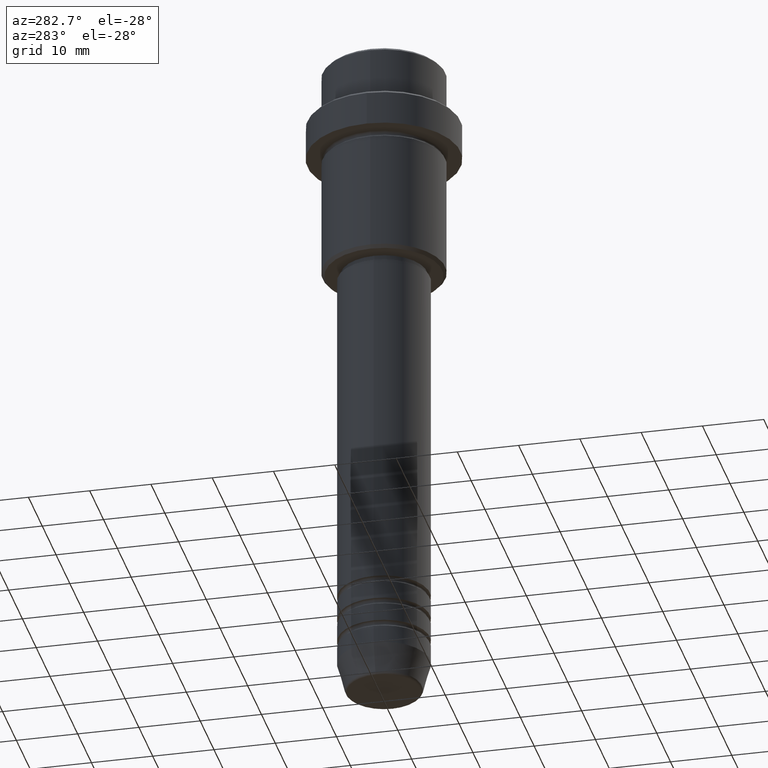
[diagram: clean part render]
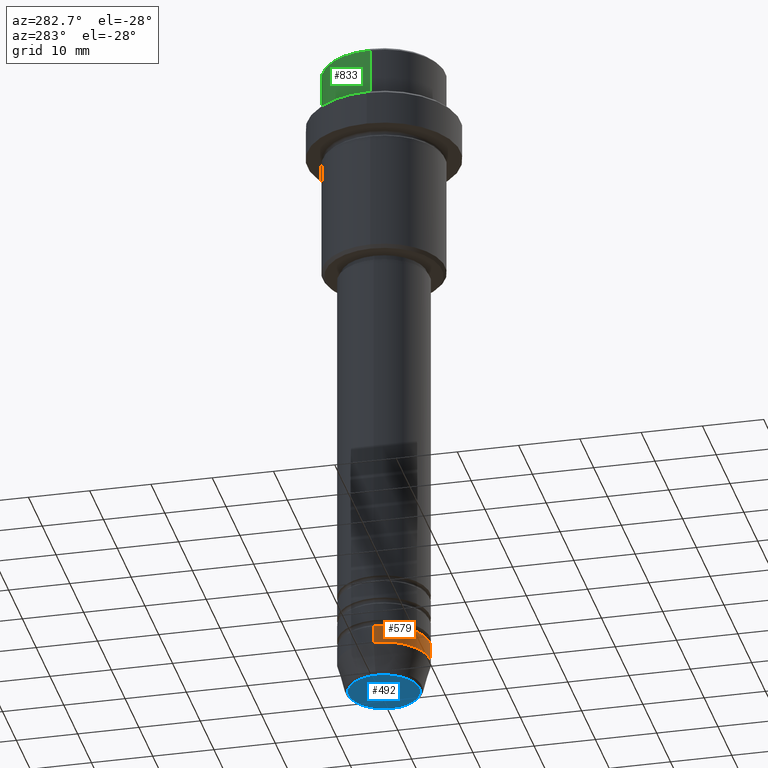
[diagram: same view with three faces highlighted in distinct colors, each labeled with its STEP entity id]
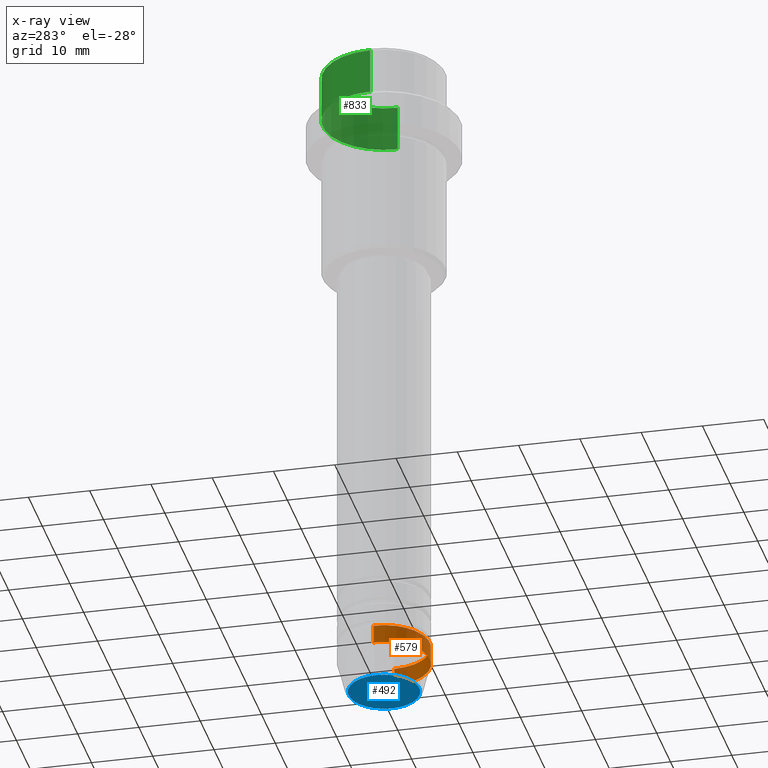
[diagram: x-ray of the same camera — body ghosted, the three highlighted faces saturated]
A machine part, auxiliary view with three faces highlighted in distinct colors.
The next image is the same camera in x-ray (body ghosted, the three faces saturated) — at least one of them is partly hidden behind the body in this view.
Their STEP definitions:

[orange] entity #579 — the highlighted cylindrical surface (partial cylindrical patch) has radius 7.5 mm, axis along (-0, -0, 1).
#188 = CARTESIAN_POINT ( 'NONE',  ( 7.500000000000000000, 0.000000000000000000, -106.0000000000000000 ) ) ;
#190 = DIRECTION ( 'NONE',  ( 1.000000000000000000, 0.000000000000000000, 0.000000000000000000 ) ) ;
#204 = EDGE_CURVE ( 'NONE', #563, #276, #934, .T. ) ;
#247 = VECTOR ( 'NONE', #1048, 1000.000000000000000 ) ;
#261 = ORIENTED_EDGE ( 'NONE', *, *, #1046, .F. ) ;
#276 = VERTEX_POINT ( 'NONE', #741 ) ;
#296 = DIRECTION ( 'NONE',  ( 1.000000000000000000, 0.000000000000000000, 0.000000000000000000 ) ) ;
#310 = AXIS2_PLACEMENT_3D ( 'NONE', #1409, #412, #190 ) ;
#341 = ORIENTED_EDGE ( 'NONE', *, *, #537, .T. ) ;
#372 = DIRECTION ( 'NONE',  ( -0.000000000000000000, -0.000000000000000000, 1.000000000000000000 ) ) ;
#385 = CARTESIAN_POINT ( 'NONE',  ( 7.500000000000000000, 0.000000000000000000, 0.000000000000000000 ) ) ;
#412 = DIRECTION ( 'NONE',  ( -0.000000000000000000, -0.000000000000000000, 1.000000000000000000 ) ) ;
#449 = AXIS2_PLACEMENT_3D ( 'NONE', #925, #372, #1266 ) ;
#537 = EDGE_CURVE ( 'NONE', #928, #995, #749, .T. ) ;
#563 = VERTEX_POINT ( 'NONE', #582 ) ;
#579 = ADVANCED_FACE ( 'NONE', ( #1404 ), #1069, .T. ) ;
#582 = CARTESIAN_POINT ( 'NONE',  ( -7.500000000000000000, 9.184850993605147944E-16, -103.0000000000000000 ) ) ;
#596 = CARTESIAN_POINT ( 'NONE',  ( -7.500000000000000000, 9.184850993605147944E-16, -106.0000000000000000 ) ) ;
#633 = ORIENTED_EDGE ( 'NONE', *, *, #204, .F. ) ;
#723 = LINE ( 'NONE', #1279, #247 ) ;
#737 = CARTESIAN_POINT ( 'NONE',  ( 0.000000000000000000, 0.000000000000000000, -103.0000000000000000 ) ) ;
#741 = CARTESIAN_POINT ( 'NONE',  ( 7.500000000000000000, 0.000000000000000000, -103.0000000000000000 ) ) ;
#749 = CIRCLE ( 'NONE', #449, 7.500000000000000000 ) ;
#815 = AXIS2_PLACEMENT_3D ( 'NONE', #737, #1410, #296 ) ;
#925 = CARTESIAN_POINT ( 'NONE',  ( 0.000000000000000000, 0.000000000000000000, -106.0000000000000000 ) ) ;
#928 = VERTEX_POINT ( 'NONE', #596 ) ;
#934 = CIRCLE ( 'NONE', #815, 7.500000000000000000 ) ;
#994 = EDGE_CURVE ( 'NONE', #995, #276, #1384, .T. ) ;
#995 = VERTEX_POINT ( 'NONE', #188 ) ;
#1021 = EDGE_LOOP ( 'NONE', ( #261, #341, #1225, #633 ) ) ;
#1046 = EDGE_CURVE ( 'NONE', #928, #563, #723, .T. ) ;
#1048 = DIRECTION ( 'NONE',  ( -0.000000000000000000, -0.000000000000000000, 1.000000000000000000 ) ) ;
#1069 = CYLINDRICAL_SURFACE ( 'NONE', #310, 7.500000000000000000 ) ;
#1129 = VECTOR ( 'NONE', #1155, 1000.000000000000000 ) ;
#1155 = DIRECTION ( 'NONE',  ( -0.000000000000000000, -0.000000000000000000, 1.000000000000000000 ) ) ;
#1225 = ORIENTED_EDGE ( 'NONE', *, *, #994, .T. ) ;
#1266 = DIRECTION ( 'NONE',  ( 1.000000000000000000, 0.000000000000000000, 0.000000000000000000 ) ) ;
#1279 = CARTESIAN_POINT ( 'NONE',  ( -7.500000000000000000, 9.184850993605147944E-16, 0.000000000000000000 ) ) ;
#1384 = LINE ( 'NONE', #385, #1129 ) ;
#1404 = FACE_OUTER_BOUND ( 'NONE', #1021, .T. ) ;
#1409 = CARTESIAN_POINT ( 'NONE',  ( 0.000000000000000000, 0.000000000000000000, 0.000000000000000000 ) ) ;
#1410 = DIRECTION ( 'NONE',  ( -0.000000000000000000, -0.000000000000000000, 1.000000000000000000 ) ) ;

[blue] entity #492 — the highlighted planar face has unit normal (0, -0, 1).
#41 = EDGE_CURVE ( 'NONE', #234, #226, #676, .T. ) ;
#112 = AXIS2_PLACEMENT_3D ( 'NONE', #906, #352, #697 ) ;
#116 = CIRCLE ( 'NONE', #1221, 5.776590543854905668 ) ;
#226 = VERTEX_POINT ( 'NONE', #519 ) ;
#234 = VERTEX_POINT ( 'NONE', #394 ) ;
#263 = CARTESIAN_POINT ( 'NONE',  ( 0.000000000000000000, 0.000000000000000000, -110.9999999999999858 ) ) ;
#352 = DIRECTION ( 'NONE',  ( 0.000000000000000000, -0.000000000000000000, 1.000000000000000000 ) ) ;
#394 = CARTESIAN_POINT ( 'NONE',  ( -5.776590543854905668, 7.370012612361445601E-16, -110.9999999999999858 ) ) ;
#466 = DIRECTION ( 'NONE',  ( 1.000000000000000000, 0.000000000000000000, 0.000000000000000000 ) ) ;
#471 = AXIS2_PLACEMENT_3D ( 'NONE', #1368, #1051, #1247 ) ;
#492 = ADVANCED_FACE ( 'NONE', ( #811 ), #1139, .F. ) ;
#519 = CARTESIAN_POINT ( 'NONE',  ( 5.776590543854905668, 0.000000000000000000, -110.9999999999999858 ) ) ;
#676 = CIRCLE ( 'NONE', #471, 5.776590543854905668 ) ;
#697 = DIRECTION ( 'NONE',  ( 1.000000000000000000, 0.000000000000000000, 0.000000000000000000 ) ) ;
#811 = FACE_OUTER_BOUND ( 'NONE', #1111, .T. ) ;
#906 = CARTESIAN_POINT ( 'NONE',  ( 0.000000000000000000, 0.000000000000000000, -110.9999999999999858 ) ) ;
#979 = EDGE_CURVE ( 'NONE', #226, #234, #116, .T. ) ;
#1009 = ORIENTED_EDGE ( 'NONE', *, *, #979, .T. ) ;
#1051 = DIRECTION ( 'NONE',  ( 0.000000000000000000, 0.000000000000000000, -1.000000000000000000 ) ) ;
#1111 = EDGE_LOOP ( 'NONE', ( #1009, #1160 ) ) ;
#1139 = PLANE ( 'NONE',  #112 ) ;
#1143 = DIRECTION ( 'NONE',  ( 0.000000000000000000, 0.000000000000000000, -1.000000000000000000 ) ) ;
#1160 = ORIENTED_EDGE ( 'NONE', *, *, #41, .T. ) ;
#1221 = AXIS2_PLACEMENT_3D ( 'NONE', #263, #1143, #466 ) ;
#1247 = DIRECTION ( 'NONE',  ( 1.000000000000000000, 0.000000000000000000, 0.000000000000000000 ) ) ;
#1368 = CARTESIAN_POINT ( 'NONE',  ( 0.000000000000000000, 0.000000000000000000, -110.9999999999999858 ) ) ;

[green] entity #833 — the highlighted cylindrical surface (partial cylindrical patch) has radius 10 mm, axis along (-0, -0, 1).
#48 = DIRECTION ( 'NONE',  ( -0.000000000000000000, -0.000000000000000000, 1.000000000000000000 ) ) ;
#49 = ORIENTED_EDGE ( 'NONE', *, *, #947, .F. ) ;
#60 = CARTESIAN_POINT ( 'NONE',  ( 0.000000000000000000, 0.000000000000000000, -0.4999999999999970024 ) ) ;
#212 = EDGE_CURVE ( 'NONE', #414, #330, #399, .T. ) ;
#214 = CYLINDRICAL_SURFACE ( 'NONE', #312, 9.999999999999998224 ) ;
#312 = AXIS2_PLACEMENT_3D ( 'NONE', #1346, #532, #328 ) ;
#313 = DIRECTION ( 'NONE',  ( 1.000000000000000000, 0.000000000000000000, 0.000000000000000000 ) ) ;
#328 = DIRECTION ( 'NONE',  ( 1.000000000000000000, 0.000000000000000000, 0.000000000000000000 ) ) ;
#330 = VERTEX_POINT ( 'NONE', #662 ) ;
#337 = AXIS2_PLACEMENT_3D ( 'NONE', #981, #1315, #313 ) ;
#390 = DIRECTION ( 'NONE',  ( -0.000000000000000000, -0.000000000000000000, 1.000000000000000000 ) ) ;
#399 = LINE ( 'NONE', #1288, #421 ) ;
#414 = VERTEX_POINT ( 'NONE', #1338 ) ;
#421 = VECTOR ( 'NONE', #390, 1000.000000000000000 ) ;
#456 = ORIENTED_EDGE ( 'NONE', *, *, #572, .T. ) ;
#460 = CARTESIAN_POINT ( 'NONE',  ( 9.999999999999998224, 0.000000000000000000, 0.000000000000000000 ) ) ;
#483 = EDGE_LOOP ( 'NONE', ( #829, #640, #456, #49 ) ) ;
#532 = DIRECTION ( 'NONE',  ( -0.000000000000000000, -0.000000000000000000, 1.000000000000000000 ) ) ;
#572 = EDGE_CURVE ( 'NONE', #330, #621, #865, .T. ) ;
#587 = LINE ( 'NONE', #460, #774 ) ;
#621 = VERTEX_POINT ( 'NONE', #969 ) ;
#624 = DIRECTION ( 'NONE',  ( 1.000000000000000000, 0.000000000000000000, 0.000000000000000000 ) ) ;
#640 = ORIENTED_EDGE ( 'NONE', *, *, #212, .T. ) ;
#662 = CARTESIAN_POINT ( 'NONE',  ( -9.999999999999998224, 1.224646799147353059E-15, -0.4999999999999970024 ) ) ;
#702 = CARTESIAN_POINT ( 'NONE',  ( 9.999999999999998224, 0.000000000000000000, -7.999999999999998224 ) ) ;
#736 = DIRECTION ( 'NONE',  ( 0.000000000000000000, 0.000000000000000000, -1.000000000000000000 ) ) ;
#774 = VECTOR ( 'NONE', #48, 1000.000000000000000 ) ;
#793 = EDGE_CURVE ( 'NONE', #923, #414, #1014, .T. ) ;
#829 = ORIENTED_EDGE ( 'NONE', *, *, #793, .T. ) ;
#833 = ADVANCED_FACE ( 'NONE', ( #872 ), #214, .T. ) ;
#865 = CIRCLE ( 'NONE', #959, 9.999999999999998224 ) ;
#872 = FACE_OUTER_BOUND ( 'NONE', #483, .T. ) ;
#923 = VERTEX_POINT ( 'NONE', #702 ) ;
#947 = EDGE_CURVE ( 'NONE', #923, #621, #587, .T. ) ;
#959 = AXIS2_PLACEMENT_3D ( 'NONE', #60, #736, #624 ) ;
#969 = CARTESIAN_POINT ( 'NONE',  ( 9.999999999999998224, 0.000000000000000000, -0.4999999999999970024 ) ) ;
#981 = CARTESIAN_POINT ( 'NONE',  ( 0.000000000000000000, 0.000000000000000000, -7.999999999999998224 ) ) ;
#1014 = CIRCLE ( 'NONE', #337, 9.999999999999998224 ) ;
#1288 = CARTESIAN_POINT ( 'NONE',  ( -9.999999999999998224, 1.224646799147353059E-15, 0.000000000000000000 ) ) ;
#1315 = DIRECTION ( 'NONE',  ( -0.000000000000000000, -0.000000000000000000, 1.000000000000000000 ) ) ;
#1338 = CARTESIAN_POINT ( 'NONE',  ( -9.999999999999998224, 1.224646799147353059E-15, -7.999999999999998224 ) ) ;
#1346 = CARTESIAN_POINT ( 'NONE',  ( 0.000000000000000000, 0.000000000000000000, 0.000000000000000000 ) ) ;